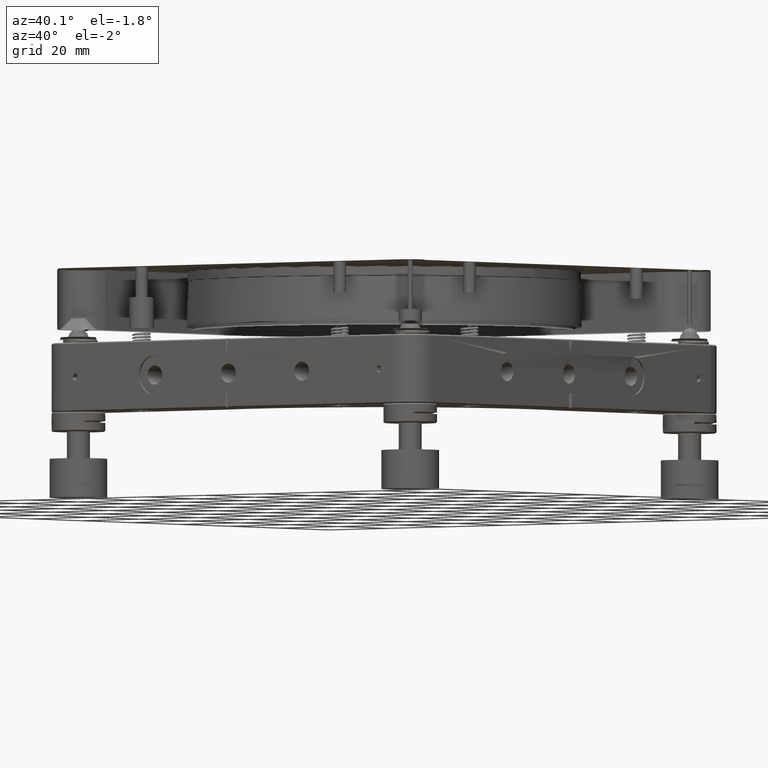
[diagram: clean part render]
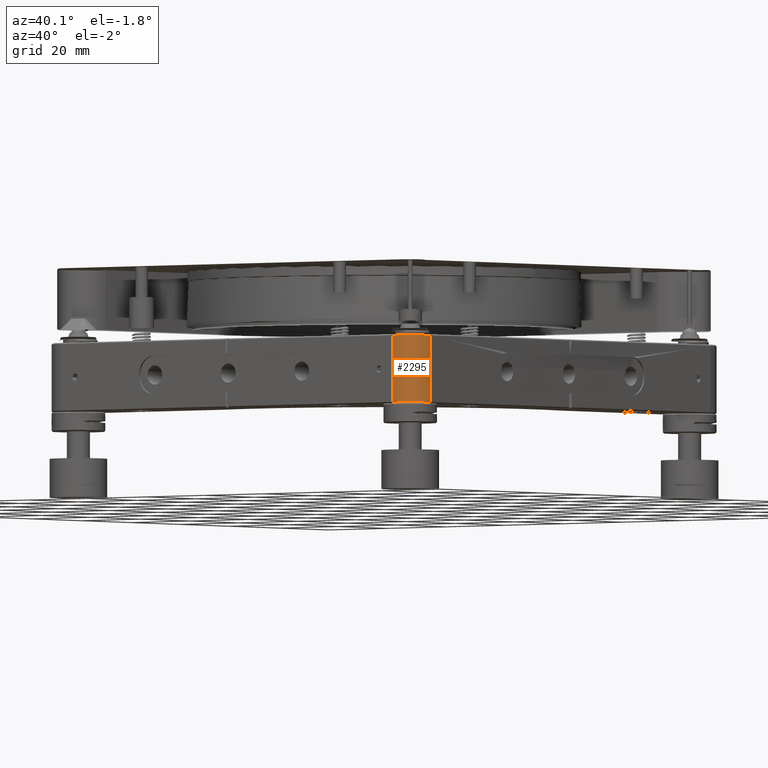
[diagram: same view with one face highlighted and labeled with its STEP entity id]
A machine part, auxiliary view. The second image highlights one B-rep face of the part: STEP entity #2295.
In plain terms, the highlighted cylindrical surface (edge-blend (fillet) strip) has radius 7 mm, axis along (0, 0, -1).
Its self-contained STEP definition (entity closure, byte-faithful):
#115 = AXIS2_PLACEMENT_3D ( 'NONE', #8061, #15140, #9652 ) ;
#1385 = CYLINDRICAL_SURFACE ( 'NONE', #115, 6.999999999999999112 ) ;
#1433 = CARTESIAN_POINT ( 'NONE',  ( 56.50000000000000000, -56.49999999999997868, 8.699999999976171239 ) ) ;
#2295 = ADVANCED_FACE ( 'NONE', ( #4687 ), #1385, .T. ) ;
#4342 = EDGE_CURVE ( 'NONE', #22322, #12427, #16824, .T. ) ;
#4687 = FACE_OUTER_BOUND ( 'NONE', #12444, .T. ) ;
#5267 = AXIS2_PLACEMENT_3D ( 'NONE', #1433, #15426, #20441 ) ;
#5429 = ORIENTED_EDGE ( 'NONE', *, *, #10275, .F. ) ;
#5541 = VECTOR ( 'NONE', #22090, 1000.000000000000000 ) ;
#6045 = AXIS2_PLACEMENT_3D ( 'NONE', #21606, #7679, #8590 ) ;
#7093 = VECTOR ( 'NONE', #22353, 1000.000000000000000 ) ;
#7679 = DIRECTION ( 'NONE',  ( -0.000000000000000000, -0.000000000000000000, 1.000000000000000000 ) ) ;
#8061 = CARTESIAN_POINT ( 'NONE',  ( 56.50000000000000000, -56.49999999999997868, 9.000000000000001776 ) ) ;
#8162 = CARTESIAN_POINT ( 'NONE',  ( 63.50000000000000000, -56.49999999999997868, 9.000000000000001776 ) ) ;
#8580 = CARTESIAN_POINT ( 'NONE',  ( 56.50000000000000711, -63.50000000005934453, 8.699999999960811081 ) ) ;
#8590 = DIRECTION ( 'NONE',  ( -1.000000000000000000, 0.000000000000000000, 0.000000000000000000 ) ) ;
#9652 = DIRECTION ( 'NONE',  ( -1.000000000000000000, 0.000000000000000000, 0.000000000000000000 ) ) ;
#9663 = CIRCLE ( 'NONE', #6045, 6.999999999999999112 ) ;
#9705 = CARTESIAN_POINT ( 'NONE',  ( 63.50000000000000000, -56.49999999999997868, -8.700000000000033040 ) ) ;
#10148 = CARTESIAN_POINT ( 'NONE',  ( 56.49999999999999289, -63.50000000002249578, -8.699999999994068034 ) ) ;
#10275 = EDGE_CURVE ( 'NONE', #11664, #12427, #16493, .T. ) ;
#10818 = CARTESIAN_POINT ( 'NONE',  ( 63.50000000002262368, -56.49999999999997868, 8.699999999994044941 ) ) ;
#11664 = VERTEX_POINT ( 'NONE', #8580 ) ;
#12039 = VERTEX_POINT ( 'NONE', #10148 ) ;
#12396 = ORIENTED_EDGE ( 'NONE', *, *, #12667, .T. ) ;
#12427 = VERTEX_POINT ( 'NONE', #10818 ) ;
#12444 = EDGE_LOOP ( 'NONE', ( #12396, #13013, #22387, #5429 ) ) ;
#12667 = EDGE_CURVE ( 'NONE', #11664, #12039, #13558, .T. ) ;
#13013 = ORIENTED_EDGE ( 'NONE', *, *, #15181, .T. ) ;
#13558 = LINE ( 'NONE', #21990, #7093 ) ;
#15140 = DIRECTION ( 'NONE',  ( 0.000000000000000000, 0.000000000000000000, -1.000000000000000000 ) ) ;
#15181 = EDGE_CURVE ( 'NONE', #12039, #22322, #9663, .T. ) ;
#15426 = DIRECTION ( 'NONE',  ( -0.000000000000000000, -0.000000000000000000, 1.000000000000000000 ) ) ;
#16493 = CIRCLE ( 'NONE', #5267, 7.000000000090496499 ) ;
#16824 = LINE ( 'NONE', #8162, #5541 ) ;
#20441 = DIRECTION ( 'NONE',  ( -1.000000000000000000, 0.000000000000000000, 0.000000000000000000 ) ) ;
#21606 = CARTESIAN_POINT ( 'NONE',  ( 56.50000000000000000, -56.49999999999997868, -8.700000000000034817 ) ) ;
#21990 = CARTESIAN_POINT ( 'NONE',  ( 56.49999999999999289, -63.49999999999997158, 9.000000000000001776 ) ) ;
#22090 = DIRECTION ( 'NONE',  ( 0.000000000000000000, 0.000000000000000000, 1.000000000000000000 ) ) ;
#22322 = VERTEX_POINT ( 'NONE', #9705 ) ;
#22353 = DIRECTION ( 'NONE',  ( 0.000000000000000000, 0.000000000000000000, -1.000000000000000000 ) ) ;
#22387 = ORIENTED_EDGE ( 'NONE', *, *, #4342, .T. ) ;